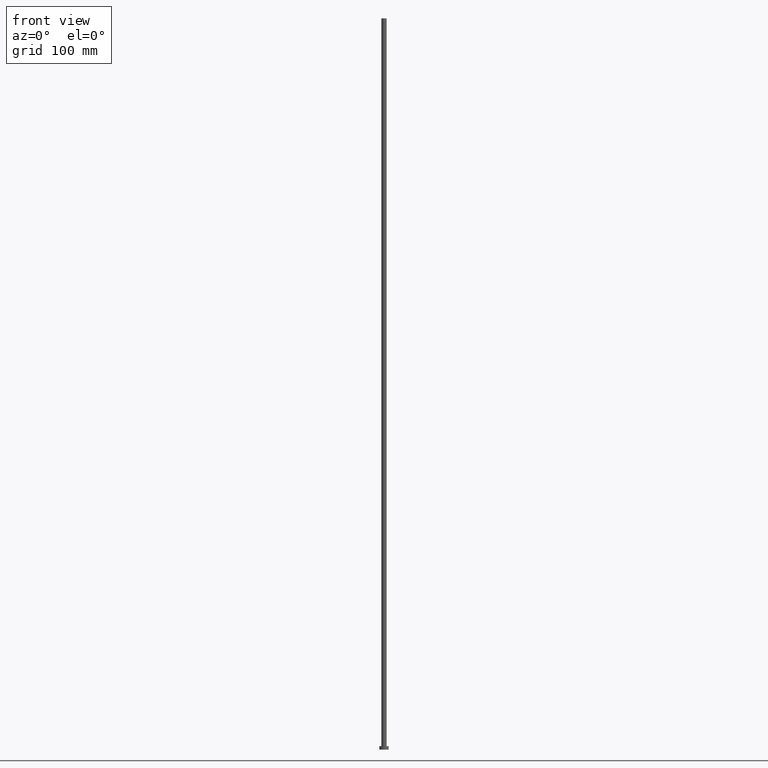
[diagram: clean part render]
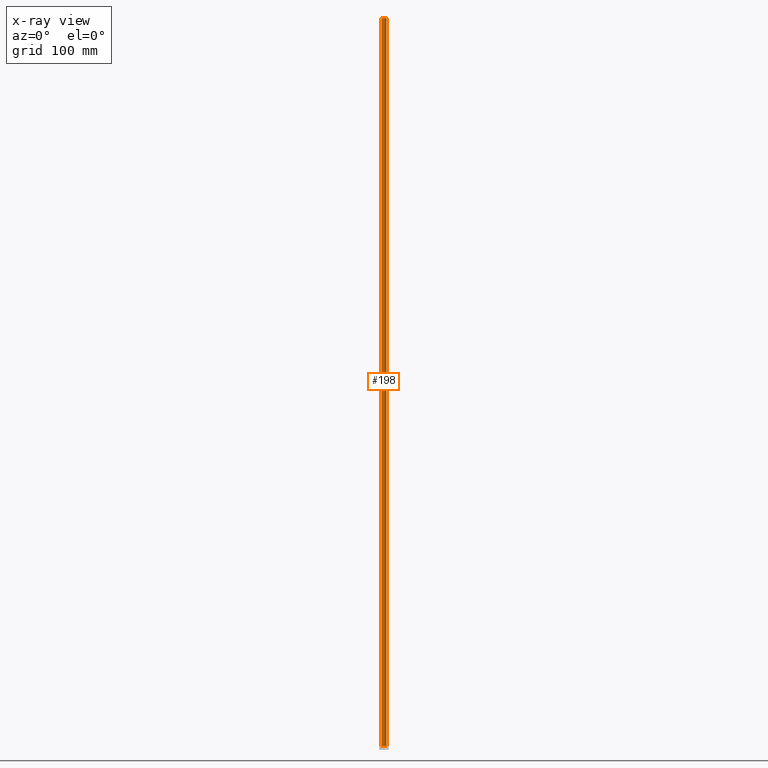
[diagram: x-ray — body ghosted, one internal face saturated and labeled with its STEP entity id]
A machine part, front view, then the same camera in x-ray: the body is ghosted and one INTERNAL B-rep face — a face not visible from any outside direction — is saturated and labeled: STEP entity #198.
In plain terms, the highlighted cylindrical surface (edge-blend (fillet) strip) has radius 2.25 mm, axis along (-0, -0, -1).
Its self-contained STEP definition (entity closure, byte-faithful):
#2 = CIRCLE ( 'NONE', #154, 2.250000000000000000 ) ;
#3 = CARTESIAN_POINT ( 'NONE',  ( 0.000000000000000000, 0.000000000000000000, 630.0000000000000000 ) ) ;
#30 = EDGE_CURVE ( 'NONE', #131, #255, #2, .T. ) ;
#64 = CARTESIAN_POINT ( 'NONE',  ( -2.250000000000000000, 0.000000000000000000, 3.000000000000000000 ) ) ;
#65 = DIRECTION ( 'NONE',  ( 1.000000000000000000, 0.000000000000000000, 0.000000000000000000 ) ) ;
#66 = CARTESIAN_POINT ( 'NONE',  ( 0.000000000000000000, 0.000000000000000000, 630.0000000000000000 ) ) ;
#73 = CYLINDRICAL_SURFACE ( 'NONE', #84, 2.250000000000000000 ) ;
#74 = VECTOR ( 'NONE', #180, 1000.000000000000000 ) ;
#77 = CARTESIAN_POINT ( 'NONE',  ( 2.250000000000000000, 2.755455298081544285E-16, 3.000000000000000000 ) ) ;
#82 = LINE ( 'NONE', #109, #74 ) ;
#84 = AXIS2_PLACEMENT_3D ( 'NONE', #66, #139, #145 ) ;
#88 = ORIENTED_EDGE ( 'NONE', *, *, #252, .F. ) ;
#91 = EDGE_LOOP ( 'NONE', ( #205, #161, #212, #88 ) ) ;
#106 = CARTESIAN_POINT ( 'NONE',  ( 2.250000000000000000, 2.755455298081544285E-16, 630.0000000000000000 ) ) ;
#109 = CARTESIAN_POINT ( 'NONE',  ( 2.250000000000000000, 2.755455298081544285E-16, 630.0000000000000000 ) ) ;
#111 = DIRECTION ( 'NONE',  ( -0.000000000000000000, -0.000000000000000000, -1.000000000000000000 ) ) ;
#112 = EDGE_CURVE ( 'NONE', #196, #177, #121, .T. ) ;
#119 = VECTOR ( 'NONE', #111, 1000.000000000000000 ) ;
#121 = CIRCLE ( 'NONE', #249, 2.250000000000000000 ) ;
#122 = FACE_OUTER_BOUND ( 'NONE', #91, .T. ) ;
#131 = VERTEX_POINT ( 'NONE', #106 ) ;
#139 = DIRECTION ( 'NONE',  ( -0.000000000000000000, -0.000000000000000000, -1.000000000000000000 ) ) ;
#140 = DIRECTION ( 'NONE',  ( 1.000000000000000000, 0.000000000000000000, 0.000000000000000000 ) ) ;
#145 = DIRECTION ( 'NONE',  ( -1.000000000000000000, 0.000000000000000000, 0.000000000000000000 ) ) ;
#154 = AXIS2_PLACEMENT_3D ( 'NONE', #3, #199, #140 ) ;
#161 = ORIENTED_EDGE ( 'NONE', *, *, #189, .T. ) ;
#167 = CARTESIAN_POINT ( 'NONE',  ( -2.250000000000000000, 0.000000000000000000, 630.0000000000000000 ) ) ;
#171 = LINE ( 'NONE', #167, #119 ) ;
#177 = VERTEX_POINT ( 'NONE', #64 ) ;
#180 = DIRECTION ( 'NONE',  ( -0.000000000000000000, -0.000000000000000000, -1.000000000000000000 ) ) ;
#189 = EDGE_CURVE ( 'NONE', #131, #196, #82, .T. ) ;
#196 = VERTEX_POINT ( 'NONE', #77 ) ;
#198 = ADVANCED_FACE ( 'NONE', ( #122 ), #73, .T. ) ;
#199 = DIRECTION ( 'NONE',  ( 0.000000000000000000, 0.000000000000000000, 1.000000000000000000 ) ) ;
#205 = ORIENTED_EDGE ( 'NONE', *, *, #30, .F. ) ;
#212 = ORIENTED_EDGE ( 'NONE', *, *, #112, .T. ) ;
#226 = CARTESIAN_POINT ( 'NONE',  ( -2.250000000000000000, 0.000000000000000000, 630.0000000000000000 ) ) ;
#239 = CARTESIAN_POINT ( 'NONE',  ( 0.000000000000000000, 0.000000000000000000, 3.000000000000000000 ) ) ;
#241 = DIRECTION ( 'NONE',  ( 0.000000000000000000, 0.000000000000000000, 1.000000000000000000 ) ) ;
#249 = AXIS2_PLACEMENT_3D ( 'NONE', #239, #241, #65 ) ;
#252 = EDGE_CURVE ( 'NONE', #255, #177, #171, .T. ) ;
#255 = VERTEX_POINT ( 'NONE', #226 ) ;